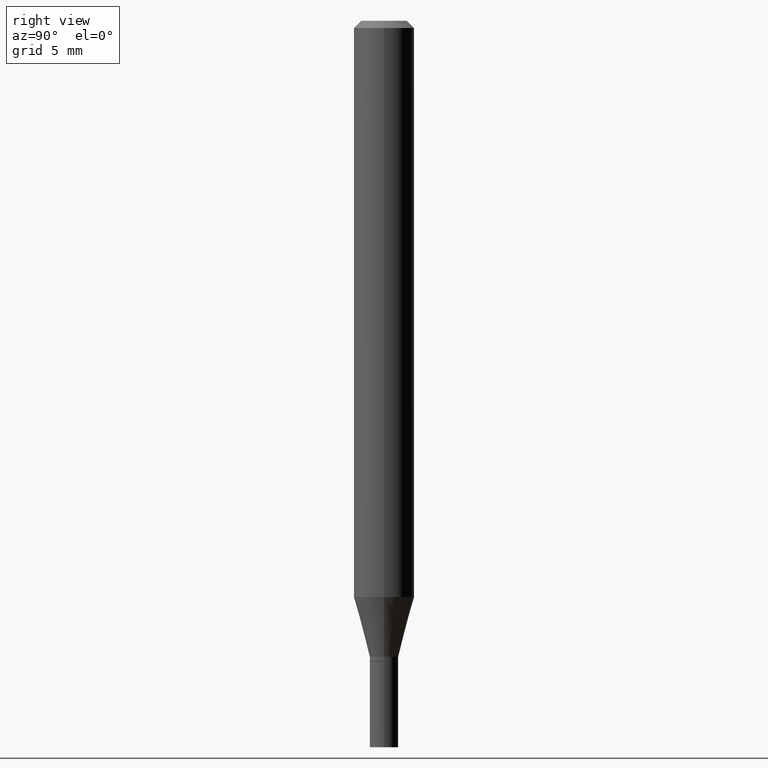
[diagram: clean part render]
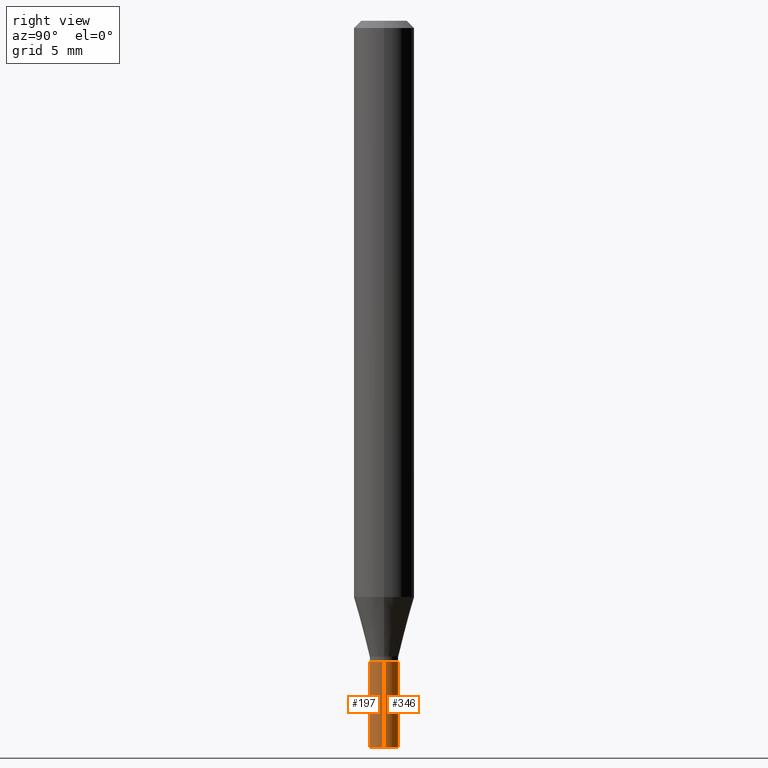
[diagram: same view with one multi-face feature highlighted, each face labeled with its STEP entity id]
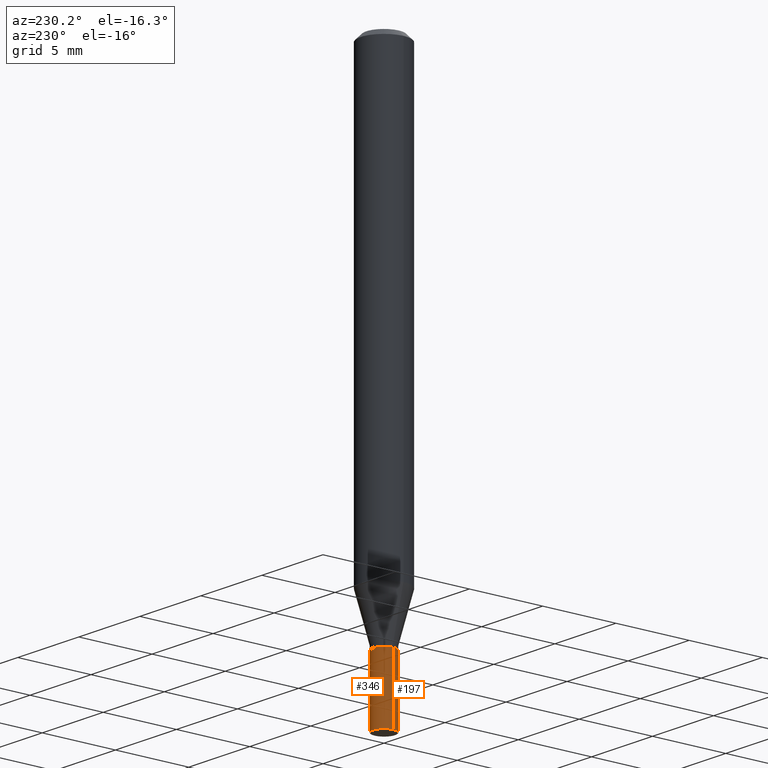
[diagram: same view with one multi-face feature highlighted, each face labeled with its STEP entity id]
A machine part, right view. The highlighted faces form ONE feature: a constant-radius fillet chain: 2 tangent blend faces with common blend radius 0.7493 mm. The faces share edges in the B-rep.
A second angle (auxiliary view) of the same feature is appended — it is thin or edge-on in the first view.
Their STEP definitions:
[1] entity #197 (Cylinder):
#4 = AXIS2_PLACEMENT_3D ( 'NONE', #465, #73, #169 ) ;
#37 = DIRECTION ( 'NONE',  ( 1.000000000000000000, -6.982962677686265922E-15, 4.876176775795935793E-29 ) ) ;
#46 = VECTOR ( 'NONE', #390, 39.37007874015748143 ) ;
#52 = VECTOR ( 'NONE', #341, 39.37007874015748143 ) ;
#73 = DIRECTION ( 'NONE',  ( -2.445468806185136597E-29, 3.491481338843145583E-15, 1.000000000000000000 ) ) ;
#77 = AXIS2_PLACEMENT_3D ( 'NONE', #220, #366, #214 ) ;
#79 = ORIENTED_EDGE ( 'NONE', *, *, #127, .F. ) ;
#91 = ORIENTED_EDGE ( 'NONE', *, *, #361, .T. ) ;
#94 = CIRCLE ( 'NONE', #4, 0.02949999999999999845 ) ;
#127 = EDGE_CURVE ( 'NONE', #337, #233, #374, .T. ) ;
#163 = CARTESIAN_POINT ( 'NONE',  ( 0.02949999999999999845, -2.059973989917448413E-16, 1.438472148859800975E-30 ) ) ;
#169 = DIRECTION ( 'NONE',  ( 1.000000000000000000, -6.982962677686250933E-15, 0.000000000000000000 ) ) ;
#184 = VERTEX_POINT ( 'NONE', #415 ) ;
#192 = CARTESIAN_POINT ( 'NONE',  ( -0.02949999999999999845, 2.096101070492295438E-16, -1.451085851625197166E-30 ) ) ;
#196 = VERTEX_POINT ( 'NONE', #238 ) ;
#197 = ADVANCED_FACE ( 'NONE', ( #201 ), #451, .T. ) ;
#201 = FACE_OUTER_BOUND ( 'NONE', #293, .T. ) ;
#209 = AXIS2_PLACEMENT_3D ( 'NONE', #278, #323, #37 ) ;
#214 = DIRECTION ( 'NONE',  ( 1.000000000000000000, -6.982962677686250933E-15, 0.000000000000000000 ) ) ;
#220 = CARTESIAN_POINT ( 'NONE',  ( 3.668203209277704895E-29, -5.237222008264718177E-15, -1.500000000000000222 ) ) ;
#233 = VERTEX_POINT ( 'NONE', #425 ) ;
#234 = EDGE_CURVE ( 'NONE', #233, #184, #94, .T. ) ;
#238 = CARTESIAN_POINT ( 'NONE',  ( 0.02949999999999999845, -5.443219407256462698E-15, -1.500000000000000222 ) ) ;
#253 = EDGE_CURVE ( 'NONE', #196, #184, #287, .T. ) ;
#263 = CIRCLE ( 'NONE', #77, 0.02949999999999999845 ) ;
#278 = CARTESIAN_POINT ( 'NONE',  ( 0.000000000000000000, 0.000000000000000000, 0.000000000000000000 ) ) ;
#287 = LINE ( 'NONE', #163, #46 ) ;
#293 = EDGE_LOOP ( 'NONE', ( #79, #91, #379, #317 ) ) ;
#317 = ORIENTED_EDGE ( 'NONE', *, *, #234, .F. ) ;
#323 = DIRECTION ( 'NONE',  ( -2.445468806185136597E-29, 3.491481338843145583E-15, 1.000000000000000000 ) ) ;
#337 = VERTEX_POINT ( 'NONE', #466 ) ;
#341 = DIRECTION ( 'NONE',  ( -2.445468806185136877E-29, 3.491481338843145188E-15, 1.000000000000000000 ) ) ;
#361 = EDGE_CURVE ( 'NONE', #337, #196, #263, .T. ) ;
#366 = DIRECTION ( 'NONE',  ( -2.445468806185136597E-29, 3.491481338843145583E-15, 1.000000000000000000 ) ) ;
#374 = LINE ( 'NONE', #192, #52 ) ;
#379 = ORIENTED_EDGE ( 'NONE', *, *, #253, .T. ) ;
#390 = DIRECTION ( 'NONE',  ( -2.445468806185136877E-29, 3.491481338843145188E-15, 1.000000000000000000 ) ) ;
#415 = CARTESIAN_POINT ( 'NONE',  ( 0.02949999999999999845, -4.825227210281225980E-15, -1.323000000000000176 ) ) ;
#425 = CARTESIAN_POINT ( 'NONE',  ( -0.02949999999999999845, -4.718615802727869288E-15, -1.323000000000000176 ) ) ;
#451 = CYLINDRICAL_SURFACE ( 'NONE', #209, 0.02949999999999999845 ) ;
#465 = CARTESIAN_POINT ( 'NONE',  ( 3.235355230582935570E-29, -4.619229811289481459E-15, -1.323000000000000176 ) ) ;
#466 = CARTESIAN_POINT ( 'NONE',  ( -0.02949999999999999845, -4.718615802727869288E-15, -1.500000000000000222 ) ) ;
[2] entity #346 (Cylinder):
#2 = FACE_OUTER_BOUND ( 'NONE', #343, .T. ) ;
#7 = DIRECTION ( 'NONE',  ( -2.445468806185136597E-29, 3.491481338843145583E-15, 1.000000000000000000 ) ) ;
#30 = DIRECTION ( 'NONE',  ( 1.000000000000000000, -6.982962677686250933E-15, 0.000000000000000000 ) ) ;
#46 = VECTOR ( 'NONE', #390, 39.37007874015748143 ) ;
#52 = VECTOR ( 'NONE', #341, 39.37007874015748143 ) ;
#76 = DIRECTION ( 'NONE',  ( -2.445468806185136597E-29, 3.491481338843145583E-15, 1.000000000000000000 ) ) ;
#110 = CYLINDRICAL_SURFACE ( 'NONE', #212, 0.02949999999999999845 ) ;
#111 = CIRCLE ( 'NONE', #296, 0.02949999999999999845 ) ;
#127 = EDGE_CURVE ( 'NONE', #337, #233, #374, .T. ) ;
#140 = DIRECTION ( 'NONE',  ( 1.000000000000000000, -6.982962677686265922E-15, 4.876176775795935793E-29 ) ) ;
#158 = ORIENTED_EDGE ( 'NONE', *, *, #325, .F. ) ;
#163 = CARTESIAN_POINT ( 'NONE',  ( 0.02949999999999999845, -2.059973989917448413E-16, 1.438472148859800975E-30 ) ) ;
#176 = CARTESIAN_POINT ( 'NONE',  ( 3.235355230582935570E-29, -4.619229811289481459E-15, -1.323000000000000176 ) ) ;
#184 = VERTEX_POINT ( 'NONE', #415 ) ;
#192 = CARTESIAN_POINT ( 'NONE',  ( -0.02949999999999999845, 2.096101070492295438E-16, -1.451085851625197166E-30 ) ) ;
#196 = VERTEX_POINT ( 'NONE', #238 ) ;
#212 = AXIS2_PLACEMENT_3D ( 'NONE', #262, #7, #140 ) ;
#233 = VERTEX_POINT ( 'NONE', #425 ) ;
#238 = CARTESIAN_POINT ( 'NONE',  ( 0.02949999999999999845, -5.443219407256462698E-15, -1.500000000000000222 ) ) ;
#240 = ORIENTED_EDGE ( 'NONE', *, *, #253, .F. ) ;
#253 = EDGE_CURVE ( 'NONE', #196, #184, #287, .T. ) ;
#259 = DIRECTION ( 'NONE',  ( 1.000000000000000000, -6.982962677686250933E-15, 0.000000000000000000 ) ) ;
#262 = CARTESIAN_POINT ( 'NONE',  ( 0.000000000000000000, 0.000000000000000000, 0.000000000000000000 ) ) ;
#275 = EDGE_CURVE ( 'NONE', #196, #337, #111, .T. ) ;
#287 = LINE ( 'NONE', #163, #46 ) ;
#289 = AXIS2_PLACEMENT_3D ( 'NONE', #176, #295, #259 ) ;
#295 = DIRECTION ( 'NONE',  ( -2.445468806185136597E-29, 3.491481338843145583E-15, 1.000000000000000000 ) ) ;
#296 = AXIS2_PLACEMENT_3D ( 'NONE', #392, #76, #30 ) ;
#302 = ORIENTED_EDGE ( 'NONE', *, *, #275, .T. ) ;
#325 = EDGE_CURVE ( 'NONE', #184, #233, #420, .T. ) ;
#337 = VERTEX_POINT ( 'NONE', #466 ) ;
#341 = DIRECTION ( 'NONE',  ( -2.445468806185136877E-29, 3.491481338843145188E-15, 1.000000000000000000 ) ) ;
#343 = EDGE_LOOP ( 'NONE', ( #302, #456, #158, #240 ) ) ;
#346 = ADVANCED_FACE ( 'NONE', ( #2 ), #110, .T. ) ;
#374 = LINE ( 'NONE', #192, #52 ) ;
#390 = DIRECTION ( 'NONE',  ( -2.445468806185136877E-29, 3.491481338843145188E-15, 1.000000000000000000 ) ) ;
#392 = CARTESIAN_POINT ( 'NONE',  ( 3.668203209277704895E-29, -5.237222008264718177E-15, -1.500000000000000222 ) ) ;
#415 = CARTESIAN_POINT ( 'NONE',  ( 0.02949999999999999845, -4.825227210281225980E-15, -1.323000000000000176 ) ) ;
#420 = CIRCLE ( 'NONE', #289, 0.02949999999999999845 ) ;
#425 = CARTESIAN_POINT ( 'NONE',  ( -0.02949999999999999845, -4.718615802727869288E-15, -1.323000000000000176 ) ) ;
#456 = ORIENTED_EDGE ( 'NONE', *, *, #127, .T. ) ;
#466 = CARTESIAN_POINT ( 'NONE',  ( -0.02949999999999999845, -4.718615802727869288E-15, -1.500000000000000222 ) ) ;